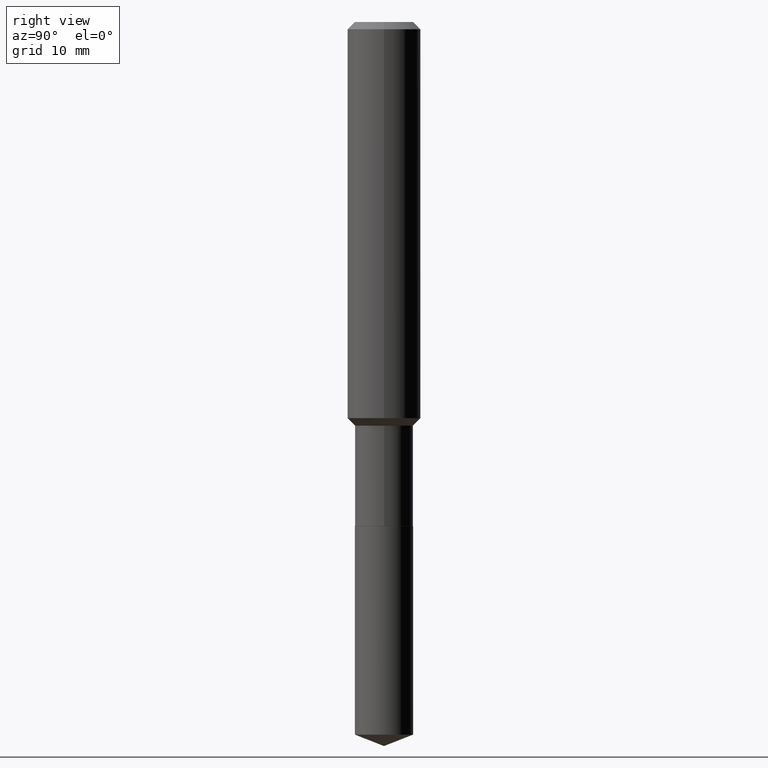
[diagram: clean part render]
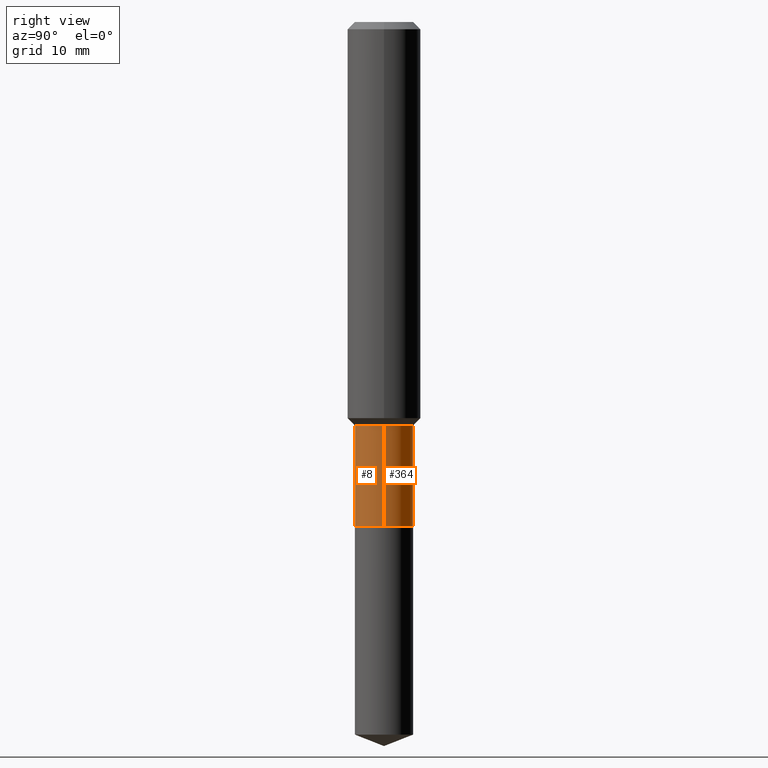
[diagram: same view with one multi-face feature highlighted, each face labeled with its STEP entity id]
A machine part, right view. The highlighted faces form ONE feature: a constant-radius fillet chain: 2 tangent blend faces with common blend radius 3.175 mm. The faces share edges in the B-rep.
Their STEP definitions:
[1] entity #8 (Cylinder):
#8 = ADVANCED_FACE ( 'NONE', ( #452 ), #371, .T. ) ;
#16 = VECTOR ( 'NONE', #130, 39.37007874015748143 ) ;
#31 = VERTEX_POINT ( 'NONE', #307 ) ;
#44 = VERTEX_POINT ( 'NONE', #120 ) ;
#57 = CIRCLE ( 'NONE', #470, 0.1249999999999999861 ) ;
#64 = VERTEX_POINT ( 'NONE', #420 ) ;
#88 = VECTOR ( 'NONE', #173, 39.37007874015748143 ) ;
#109 = DIRECTION ( 'NONE',  ( -2.445468806185136597E-29, 3.491481338843145583E-15, 1.000000000000000000 ) ) ;
#120 = CARTESIAN_POINT ( 'NONE',  ( 0.1249999999999999861, -6.927448124398681041E-15, -1.734099999999999975 ) ) ;
#130 = DIRECTION ( 'NONE',  ( -2.445468806185136877E-29, 3.491481338843145188E-15, 1.000000000000000000 ) ) ;
#132 = CARTESIAN_POINT ( 'NONE',  ( -0.1249999999999999861, -5.918289876307644428E-15, -1.734099999999999975 ) ) ;
#173 = DIRECTION ( 'NONE',  ( -2.445468806185136877E-29, 3.491481338843145188E-15, 1.000000000000000000 ) ) ;
#188 = CARTESIAN_POINT ( 'NONE',  ( 5.293950871629583880E-29, -7.558358802327641618E-15, -2.164800000000000058 ) ) ;
#189 = ORIENTED_EDGE ( 'NONE', *, *, #331, .T. ) ;
#194 = CIRCLE ( 'NONE', #490, 0.1250000000000000555 ) ;
#221 = CARTESIAN_POINT ( 'NONE',  ( 0.000000000000000000, 0.000000000000000000, 0.000000000000000000 ) ) ;
#240 = ORIENTED_EDGE ( 'NONE', *, *, #279, .F. ) ;
#259 = DIRECTION ( 'NONE',  ( -2.445468806185136597E-29, 3.491481338843145583E-15, 1.000000000000000000 ) ) ;
#279 = EDGE_CURVE ( 'NONE', #485, #44, #57, .T. ) ;
#283 = ORIENTED_EDGE ( 'NONE', *, *, #459, .F. ) ;
#302 = EDGE_CURVE ( 'NONE', #64, #44, #308, .T. ) ;
#307 = CARTESIAN_POINT ( 'NONE',  ( -0.1250000000000000555, -5.918289876307644428E-15, -2.164800000000000058 ) ) ;
#308 = LINE ( 'NONE', #384, #16 ) ;
#311 = CARTESIAN_POINT ( 'NONE',  ( 4.240687456805644908E-29, -6.054577789687898491E-15, -1.734099999999999975 ) ) ;
#314 = LINE ( 'NONE', #344, #88 ) ;
#331 = EDGE_CURVE ( 'NONE', #31, #64, #194, .T. ) ;
#342 = AXIS2_PLACEMENT_3D ( 'NONE', #221, #259, #416 ) ;
#344 = CARTESIAN_POINT ( 'NONE',  ( -0.1250000000000000278, 8.881784197001254296E-16, -6.148668862818634329E-30 ) ) ;
#366 = DIRECTION ( 'NONE',  ( 1.000000000000000000, -6.982962677686267499E-15, 0.000000000000000000 ) ) ;
#371 = CYLINDRICAL_SURFACE ( 'NONE', #342, 0.1250000000000000278 ) ;
#384 = CARTESIAN_POINT ( 'NONE',  ( 0.1250000000000000278, -8.728703347107836346E-16, 6.095220969744921142E-30 ) ) ;
#392 = DIRECTION ( 'NONE',  ( 1.000000000000000000, -6.982962677686263555E-15, 0.000000000000000000 ) ) ;
#416 = DIRECTION ( 'NONE',  ( 1.000000000000000000, -6.982962677686267499E-15, 4.876176775795935793E-29 ) ) ;
#420 = CARTESIAN_POINT ( 'NONE',  ( 0.1250000000000000555, -8.431229137038424957E-15, -2.164800000000000058 ) ) ;
#436 = ORIENTED_EDGE ( 'NONE', *, *, #302, .T. ) ;
#437 = EDGE_LOOP ( 'NONE', ( #283, #189, #436, #240 ) ) ;
#452 = FACE_OUTER_BOUND ( 'NONE', #437, .T. ) ;
#459 = EDGE_CURVE ( 'NONE', #31, #485, #314, .T. ) ;
#465 = DIRECTION ( 'NONE',  ( -2.445468806185136597E-29, 3.491481338843145583E-15, 1.000000000000000000 ) ) ;
#470 = AXIS2_PLACEMENT_3D ( 'NONE', #311, #465, #392 ) ;
#485 = VERTEX_POINT ( 'NONE', #132 ) ;
#490 = AXIS2_PLACEMENT_3D ( 'NONE', #188, #109, #366 ) ;
[2] entity #364 (Cylinder):
#5 = DIRECTION ( 'NONE',  ( 1.000000000000000000, -6.982962677686263555E-15, 0.000000000000000000 ) ) ;
#16 = VECTOR ( 'NONE', #130, 39.37007874015748143 ) ;
#30 = FACE_OUTER_BOUND ( 'NONE', #454, .T. ) ;
#31 = VERTEX_POINT ( 'NONE', #307 ) ;
#35 = CARTESIAN_POINT ( 'NONE',  ( 5.293950871629583880E-29, -7.558358802327641618E-15, -2.164800000000000058 ) ) ;
#44 = VERTEX_POINT ( 'NONE', #120 ) ;
#64 = VERTEX_POINT ( 'NONE', #420 ) ;
#75 = DIRECTION ( 'NONE',  ( 1.000000000000000000, -6.982962677686267499E-15, 4.876176775795935793E-29 ) ) ;
#87 = CARTESIAN_POINT ( 'NONE',  ( 4.240687456805644908E-29, -6.054577789687898491E-15, -1.734099999999999975 ) ) ;
#88 = VECTOR ( 'NONE', #173, 39.37007874015748143 ) ;
#90 = AXIS2_PLACEMENT_3D ( 'NONE', #35, #370, #489 ) ;
#114 = CIRCLE ( 'NONE', #289, 0.1249999999999999861 ) ;
#120 = CARTESIAN_POINT ( 'NONE',  ( 0.1249999999999999861, -6.927448124398681041E-15, -1.734099999999999975 ) ) ;
#130 = DIRECTION ( 'NONE',  ( -2.445468806185136877E-29, 3.491481338843145188E-15, 1.000000000000000000 ) ) ;
#132 = CARTESIAN_POINT ( 'NONE',  ( -0.1249999999999999861, -5.918289876307644428E-15, -1.734099999999999975 ) ) ;
#148 = ORIENTED_EDGE ( 'NONE', *, *, #459, .T. ) ;
#173 = DIRECTION ( 'NONE',  ( -2.445468806185136877E-29, 3.491481338843145188E-15, 1.000000000000000000 ) ) ;
#225 = CIRCLE ( 'NONE', #90, 0.1250000000000000555 ) ;
#234 = DIRECTION ( 'NONE',  ( -2.445468806185136597E-29, 3.491481338843145583E-15, 1.000000000000000000 ) ) ;
#262 = CARTESIAN_POINT ( 'NONE',  ( 0.000000000000000000, 0.000000000000000000, 0.000000000000000000 ) ) ;
#289 = AXIS2_PLACEMENT_3D ( 'NONE', #87, #234, #5 ) ;
#302 = EDGE_CURVE ( 'NONE', #64, #44, #308, .T. ) ;
#307 = CARTESIAN_POINT ( 'NONE',  ( -0.1250000000000000555, -5.918289876307644428E-15, -2.164800000000000058 ) ) ;
#308 = LINE ( 'NONE', #384, #16 ) ;
#314 = LINE ( 'NONE', #344, #88 ) ;
#315 = AXIS2_PLACEMENT_3D ( 'NONE', #262, #456, #75 ) ;
#344 = CARTESIAN_POINT ( 'NONE',  ( -0.1250000000000000278, 8.881784197001254296E-16, -6.148668862818634329E-30 ) ) ;
#359 = ORIENTED_EDGE ( 'NONE', *, *, #448, .F. ) ;
#364 = ADVANCED_FACE ( 'NONE', ( #30 ), #449, .T. ) ;
#370 = DIRECTION ( 'NONE',  ( -2.445468806185136597E-29, 3.491481338843145583E-15, 1.000000000000000000 ) ) ;
#384 = CARTESIAN_POINT ( 'NONE',  ( 0.1250000000000000278, -8.728703347107836346E-16, 6.095220969744921142E-30 ) ) ;
#395 = ORIENTED_EDGE ( 'NONE', *, *, #302, .F. ) ;
#414 = EDGE_CURVE ( 'NONE', #64, #31, #225, .T. ) ;
#420 = CARTESIAN_POINT ( 'NONE',  ( 0.1250000000000000555, -8.431229137038424957E-15, -2.164800000000000058 ) ) ;
#442 = ORIENTED_EDGE ( 'NONE', *, *, #414, .T. ) ;
#448 = EDGE_CURVE ( 'NONE', #44, #485, #114, .T. ) ;
#449 = CYLINDRICAL_SURFACE ( 'NONE', #315, 0.1250000000000000278 ) ;
#454 = EDGE_LOOP ( 'NONE', ( #442, #148, #359, #395 ) ) ;
#456 = DIRECTION ( 'NONE',  ( -2.445468806185136597E-29, 3.491481338843145583E-15, 1.000000000000000000 ) ) ;
#459 = EDGE_CURVE ( 'NONE', #31, #485, #314, .T. ) ;
#485 = VERTEX_POINT ( 'NONE', #132 ) ;
#489 = DIRECTION ( 'NONE',  ( 1.000000000000000000, -6.982962677686267499E-15, 0.000000000000000000 ) ) ;